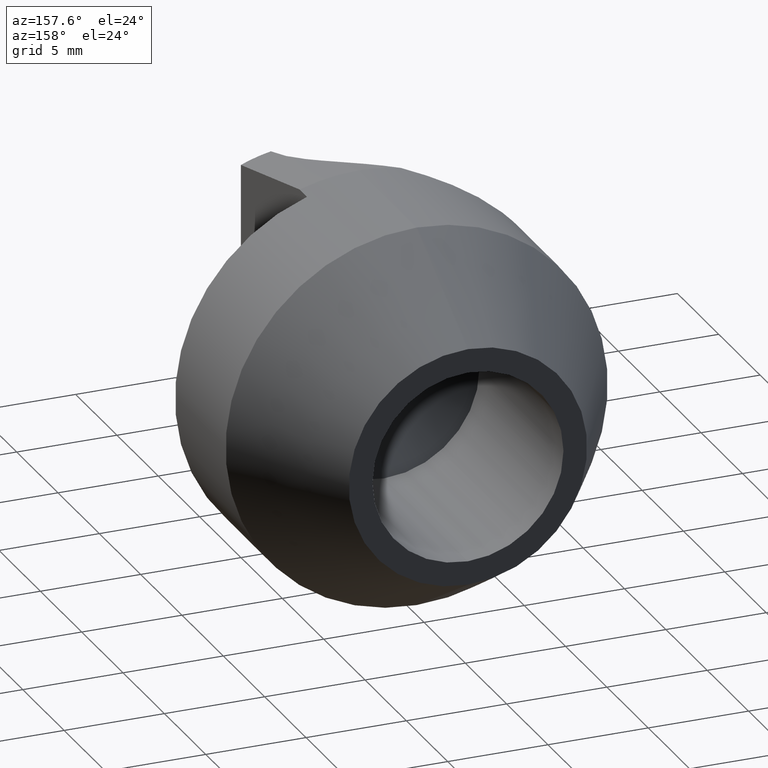
[diagram: clean part render]
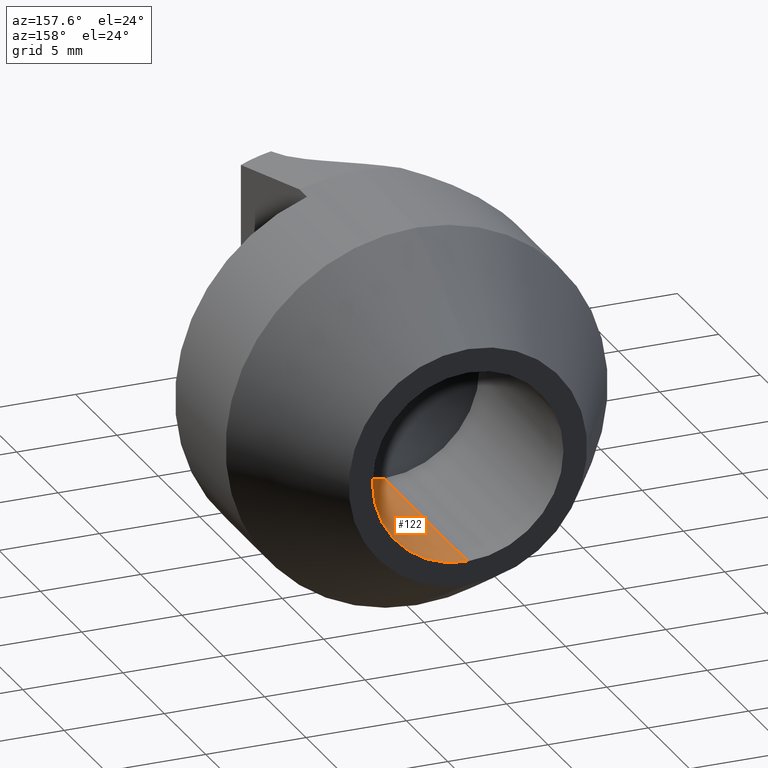
[diagram: same view with one face highlighted and labeled with its STEP entity id]
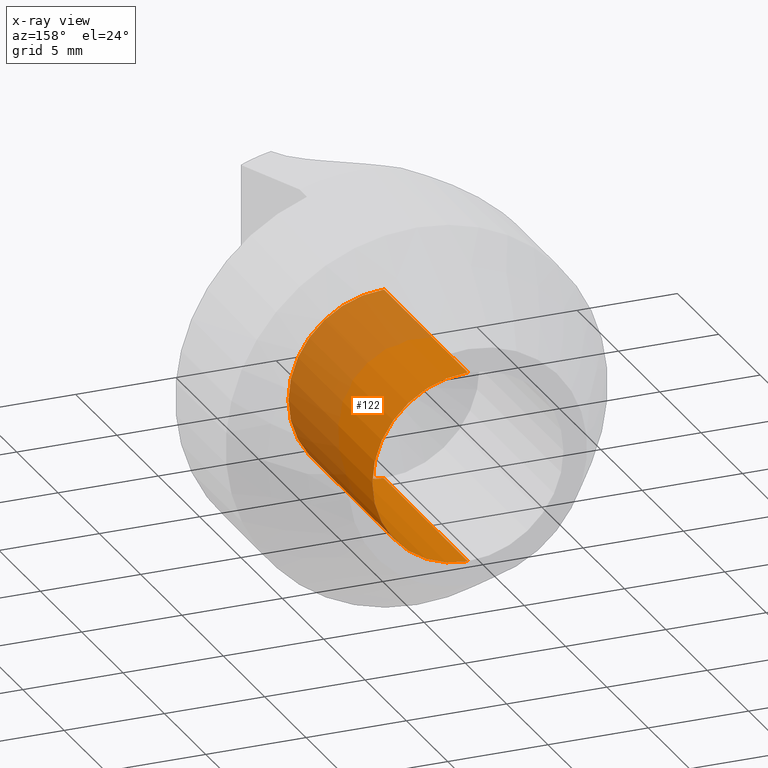
[diagram: x-ray of the same camera — body ghosted, the highlighted face saturated]
A machine part, auxiliary view. The second image highlights one B-rep face of the part: STEP entity #122.
The next image is the same camera in x-ray: the body ghosted, the highlighted face saturated — about 48% of this face is hidden behind the body in this view.
In plain terms, the highlighted cylindrical surface (partial cylindrical patch) has radius 4.7625 mm, axis along (-0, 1, -0).
Its self-contained STEP definition (entity closure, byte-faithful):
#7 = EDGE_CURVE ( 'NONE', #29, #303, #258, .T. ) ;
#29 = VERTEX_POINT ( 'NONE', #527 ) ;
#61 = LINE ( 'NONE', #500, #315 ) ;
#91 = DIRECTION ( 'NONE',  ( 0.000000000000000000, 0.000000000000000000, 1.000000000000000000 ) ) ;
#100 = FACE_OUTER_BOUND ( 'NONE', #298, .T. ) ;
#104 = DIRECTION ( 'NONE',  ( -0.000000000000000000, 1.000000000000000000, -0.000000000000000000 ) ) ;
#118 = AXIS2_PLACEMENT_3D ( 'NONE', #186, #322, #91 ) ;
#120 = VERTEX_POINT ( 'NONE', #195 ) ;
#122 = ADVANCED_FACE ( 'NONE', ( #100 ), #145, .F. ) ;
#123 = DIRECTION ( 'NONE',  ( -0.000000000000000000, 1.000000000000000000, -0.000000000000000000 ) ) ;
#131 = EDGE_CURVE ( 'NONE', #29, #251, #61, .T. ) ;
#136 = CIRCLE ( 'NONE', #118, 0.1874999999999999167 ) ;
#137 = CARTESIAN_POINT ( 'NONE',  ( 2.296212748401285877E-17, 0.8000000000000000444, -0.1874999999999998890 ) ) ;
#145 = CYLINDRICAL_SURFACE ( 'NONE', #223, 0.1874999999999998890 ) ;
#186 = CARTESIAN_POINT ( 'NONE',  ( 0.000000000000000000, 0.8000000000000000444, 0.000000000000000000 ) ) ;
#195 = CARTESIAN_POINT ( 'NONE',  ( 2.296212748401286185E-17, 0.8000000000000000444, -0.1874999999999999167 ) ) ;
#223 = AXIS2_PLACEMENT_3D ( 'NONE', #282, #333, #329 ) ;
#237 = ORIENTED_EDGE ( 'NONE', *, *, #7, .F. ) ;
#238 = CARTESIAN_POINT ( 'NONE',  ( 2.296212748401285260E-17, 0.4000000000000000777, -0.1874999999999998335 ) ) ;
#239 = AXIS2_PLACEMENT_3D ( 'NONE', #356, #123, #399 ) ;
#250 = CARTESIAN_POINT ( 'NONE',  ( 0.000000000000000000, 0.8000000000000000444, 0.1874999999999999167 ) ) ;
#251 = VERTEX_POINT ( 'NONE', #250 ) ;
#258 = CIRCLE ( 'NONE', #239, 0.1874999999999998335 ) ;
#282 = CARTESIAN_POINT ( 'NONE',  ( 0.000000000000000000, 0.8000000000000000444, 0.000000000000000000 ) ) ;
#291 = VECTOR ( 'NONE', #487, 39.37007874015748143 ) ;
#298 = EDGE_LOOP ( 'NONE', ( #461, #237, #522, #546 ) ) ;
#303 = VERTEX_POINT ( 'NONE', #238 ) ;
#315 = VECTOR ( 'NONE', #104, 39.37007874015748143 ) ;
#322 = DIRECTION ( 'NONE',  ( -0.000000000000000000, 1.000000000000000000, -0.000000000000000000 ) ) ;
#329 = DIRECTION ( 'NONE',  ( 0.000000000000000000, 0.000000000000000000, 1.000000000000000000 ) ) ;
#330 = EDGE_CURVE ( 'NONE', #251, #120, #136, .T. ) ;
#333 = DIRECTION ( 'NONE',  ( -0.000000000000000000, 1.000000000000000000, -0.000000000000000000 ) ) ;
#354 = LINE ( 'NONE', #137, #291 ) ;
#356 = CARTESIAN_POINT ( 'NONE',  ( 0.000000000000000000, 0.4000000000000000777, 0.000000000000000000 ) ) ;
#399 = DIRECTION ( 'NONE',  ( 0.000000000000000000, 0.000000000000000000, 1.000000000000000000 ) ) ;
#461 = ORIENTED_EDGE ( 'NONE', *, *, #544, .F. ) ;
#487 = DIRECTION ( 'NONE',  ( -0.000000000000000000, 1.000000000000000000, -0.000000000000000000 ) ) ;
#500 = CARTESIAN_POINT ( 'NONE',  ( 0.000000000000000000, 0.8000000000000000444, 0.1874999999999998890 ) ) ;
#522 = ORIENTED_EDGE ( 'NONE', *, *, #131, .T. ) ;
#527 = CARTESIAN_POINT ( 'NONE',  ( 0.000000000000000000, 0.4000000000000000777, 0.1874999999999998335 ) ) ;
#544 = EDGE_CURVE ( 'NONE', #303, #120, #354, .T. ) ;
#546 = ORIENTED_EDGE ( 'NONE', *, *, #330, .T. ) ;